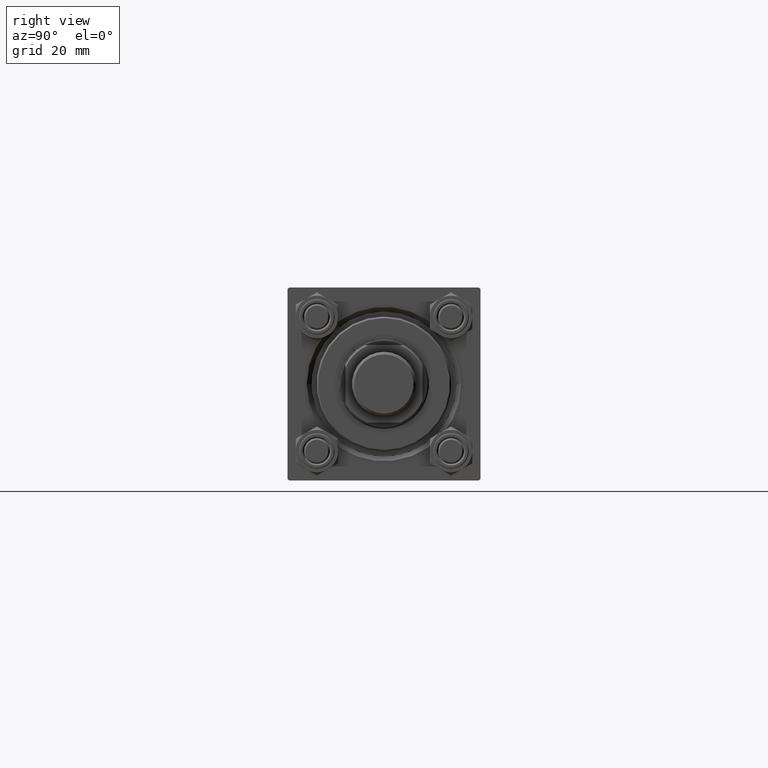
[diagram: clean part render]
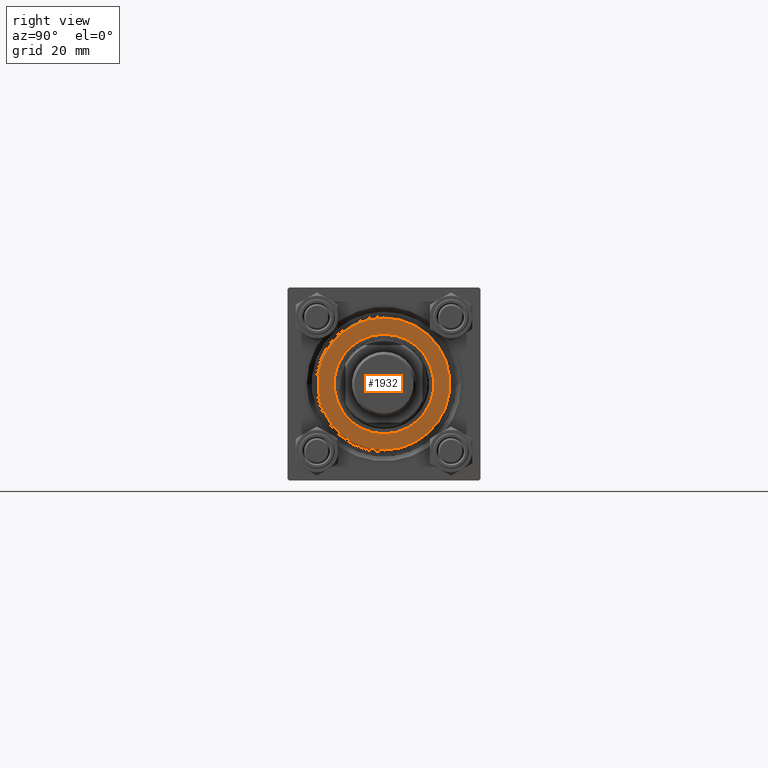
[diagram: same view with one face highlighted and labeled with its STEP entity id]
A machine part, right view. The second image highlights one B-rep face of the part: STEP entity #1932.
In plain terms, the highlighted planar face has unit normal (1, 0, 0).
Its self-contained STEP definition (entity closure, byte-faithful):
#1435 = AXIS2_PLACEMENT_3D ( 'NONE', #35346, #31359, #35814 ) ;
#1932 = ADVANCED_FACE ( 'NONE', ( #31135, #45468 ), #46165, .T. ) ;
#1993 = EDGE_CURVE ( 'NONE', #42053, #9891, #43491, .T. ) ;
#3940 = ORIENTED_EDGE ( 'NONE', *, *, #25763, .F. ) ;
#4697 = VERTEX_POINT ( 'NONE', #8304 ) ;
#7291 = DIRECTION ( 'NONE',  ( 0.000000000000000000, 0.000000000000000000, 1.000000000000000000 ) ) ;
#8304 = CARTESIAN_POINT ( 'NONE',  ( -15.50000000000000000, 1.898202538678397557E-15, 40.70000000000000284 ) ) ;
#9891 = VERTEX_POINT ( 'NONE', #41313 ) ;
#9951 = CARTESIAN_POINT ( 'NONE',  ( 15.50000000000000000, 0.000000000000000000, 40.70000000000000284 ) ) ;
#11244 = AXIS2_PLACEMENT_3D ( 'NONE', #13161, #24215, #41852 ) ;
#11524 = CARTESIAN_POINT ( 'NONE',  ( 0.000000000000000000, 0.000000000000000000, 40.70000000000000284 ) ) ;
#13161 = CARTESIAN_POINT ( 'NONE',  ( 0.000000000000000000, 0.000000000000000000, 40.70000000000000284 ) ) ;
#17940 = CARTESIAN_POINT ( 'NONE',  ( 0.000000000000000000, 0.000000000000000000, 40.70000000000000284 ) ) ;
#18580 = CIRCLE ( 'NONE', #33601, 15.50000000000000000 ) ;
#18879 = ORIENTED_EDGE ( 'NONE', *, *, #19486, .T. ) ;
#18985 = ORIENTED_EDGE ( 'NONE', *, *, #1993, .T. ) ;
#19486 = EDGE_CURVE ( 'NONE', #9891, #42053, #31900, .T. ) ;
#20816 = EDGE_LOOP ( 'NONE', ( #18879, #18985 ) ) ;
#21360 = AXIS2_PLACEMENT_3D ( 'NONE', #11524, #7291, #36458 ) ;
#22837 = DIRECTION ( 'NONE',  ( 1.000000000000000000, 0.000000000000000000, 0.000000000000000000 ) ) ;
#23064 = CARTESIAN_POINT ( 'NONE',  ( 20.49999999999999645, 2.541142108230757480E-15, 40.70000000000000284 ) ) ;
#24215 = DIRECTION ( 'NONE',  ( 0.000000000000000000, 0.000000000000000000, 1.000000000000000000 ) ) ;
#24305 = DIRECTION ( 'NONE',  ( 1.000000000000000000, 0.000000000000000000, 0.000000000000000000 ) ) ;
#24873 = ORIENTED_EDGE ( 'NONE', *, *, #34935, .F. ) ;
#25763 = EDGE_CURVE ( 'NONE', #40445, #4697, #18580, .T. ) ;
#27711 = AXIS2_PLACEMENT_3D ( 'NONE', #17940, #32054, #24305 ) ;
#29434 = DIRECTION ( 'NONE',  ( 0.000000000000000000, 0.000000000000000000, 1.000000000000000000 ) ) ;
#31135 = FACE_BOUND ( 'NONE', #41111, .T. ) ;
#31359 = DIRECTION ( 'NONE',  ( 0.000000000000000000, 0.000000000000000000, 1.000000000000000000 ) ) ;
#31900 = CIRCLE ( 'NONE', #21360, 20.49999999999999645 ) ;
#32054 = DIRECTION ( 'NONE',  ( 0.000000000000000000, 0.000000000000000000, 1.000000000000000000 ) ) ;
#32955 = CARTESIAN_POINT ( 'NONE',  ( 0.000000000000000000, 0.000000000000000000, 40.70000000000000284 ) ) ;
#33601 = AXIS2_PLACEMENT_3D ( 'NONE', #32955, #29434, #22837 ) ;
#34561 = CIRCLE ( 'NONE', #11244, 15.50000000000000000 ) ;
#34935 = EDGE_CURVE ( 'NONE', #4697, #40445, #34561, .T. ) ;
#35346 = CARTESIAN_POINT ( 'NONE',  ( 0.000000000000000000, 0.000000000000000000, 40.70000000000000284 ) ) ;
#35814 = DIRECTION ( 'NONE',  ( 1.000000000000000000, 0.000000000000000000, -0.000000000000000000 ) ) ;
#36458 = DIRECTION ( 'NONE',  ( 1.000000000000000000, 0.000000000000000000, 0.000000000000000000 ) ) ;
#40445 = VERTEX_POINT ( 'NONE', #9951 ) ;
#41111 = EDGE_LOOP ( 'NONE', ( #3940, #24873 ) ) ;
#41313 = CARTESIAN_POINT ( 'NONE',  ( -20.49999999999999645, 0.000000000000000000, 40.70000000000000284 ) ) ;
#41852 = DIRECTION ( 'NONE',  ( 1.000000000000000000, 0.000000000000000000, 0.000000000000000000 ) ) ;
#42053 = VERTEX_POINT ( 'NONE', #23064 ) ;
#43491 = CIRCLE ( 'NONE', #27711, 20.49999999999999645 ) ;
#45468 = FACE_OUTER_BOUND ( 'NONE', #20816, .T. ) ;
#46165 = PLANE ( 'NONE',  #1435 ) ;